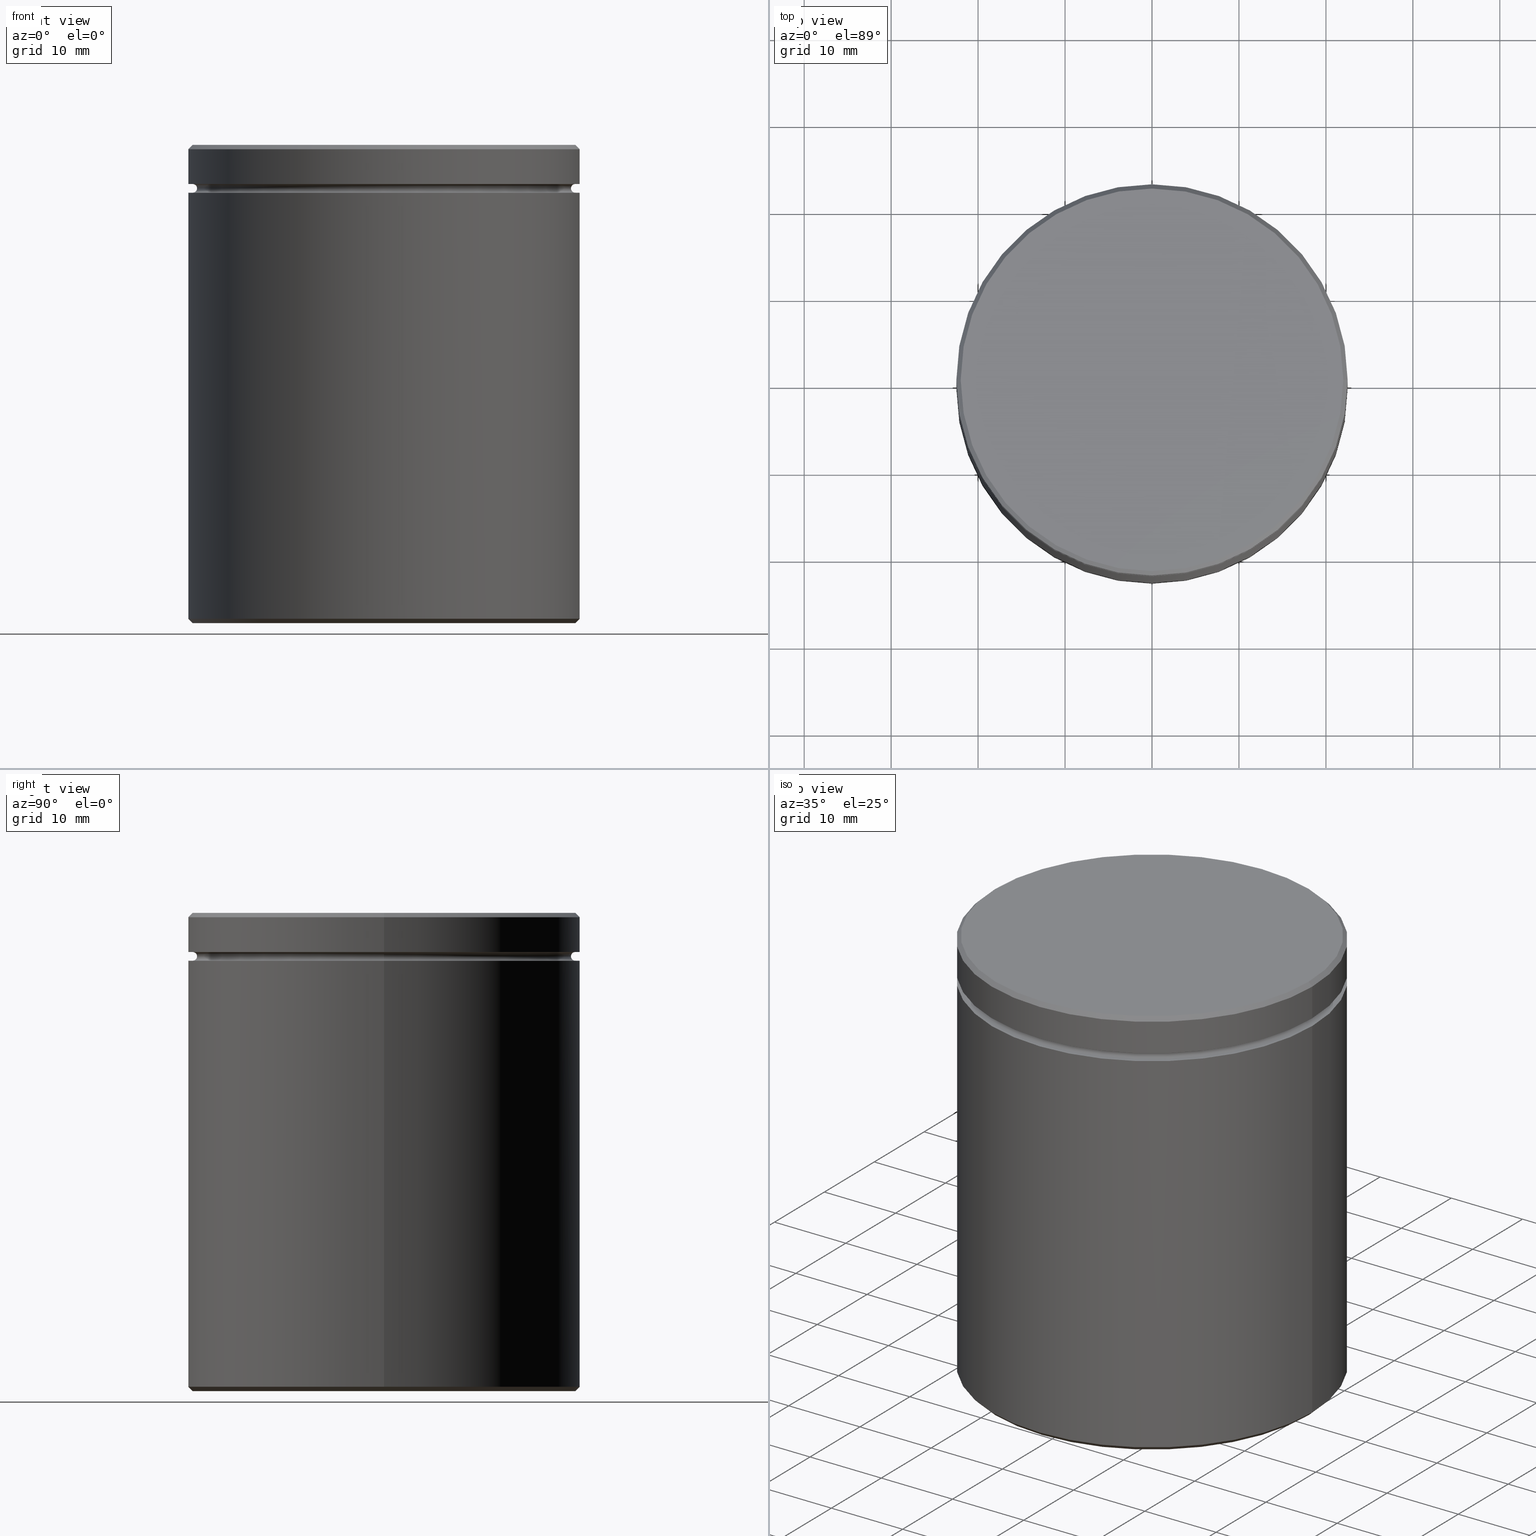
[diagram: canonical four-view strip — front | top / right | iso, engineering-drawing reading convention]
A machine part, canonical four-view strip (front | top / right | iso — engineering-drawing reading convention). The complete STEP part file that produces these views, byte-faithful:
ISO-10303-21;
HEADER;
FILE_DESCRIPTION (( 'STEP AP203' ),
    '1' );
FILE_NAME ('cf23.STEP',
    '2024-01-02T17:56:06',
    ( '' ),
    ( '' ),
    'SwSTEP 2.0',
    'SolidWorks 2019',
    '' );
FILE_SCHEMA (( 'CONFIG_CONTROL_DESIGN' ));
ENDSEC;

DATA;
#1 = ORIENTED_EDGE ( 'NONE', *, *, #313, .F. ) ;
#2 = CARTESIAN_POINT ( 'NONE',  ( 0.000000000000000000, 0.000000000000000000, 0.000000000000000000 ) ) ;
#3 = DIRECTION ( 'NONE',  ( 1.000000000000000000, 0.000000000000000000, 0.000000000000000000 ) ) ;
#4 = ORIENTED_EDGE ( 'NONE', *, *, #544, .T. ) ;
#5 = AXIS2_PLACEMENT_3D ( 'NONE', #542, #380, #504 ) ;
#6 = CC_DESIGN_APPROVAL ( #272, ( #123 ) ) ;
#7 = PRODUCT ( 'cf23', 'cf23', '', ( #242 ) ) ;
#8 = CARTESIAN_POINT ( 'NONE',  ( 0.000000000000000000, 0.000000000000000000, -4.999999999999999112 ) ) ;
#9 = DIRECTION ( 'NONE',  ( 1.000000000000000000, 0.000000000000000000, 0.000000000000000000 ) ) ;
#10 = DIRECTION ( 'NONE',  ( 0.000000000000000000, 0.000000000000000000, -1.000000000000000000 ) ) ;
#11 =( LENGTH_UNIT ( ) NAMED_UNIT ( * ) SI_UNIT ( .MILLI., .METRE. ) );
#12 = ORIENTED_EDGE ( 'NONE', *, *, #475, .T. ) ;
#13 = FACE_OUTER_BOUND ( 'NONE', #412, .T. ) ;
#14 = EDGE_LOOP ( 'NONE', ( #536, #84, #99, #256 ) ) ;
#15 = AXIS2_PLACEMENT_3D ( 'NONE', #65, #60, #139 ) ;
#16 = DIRECTION ( 'NONE',  ( -0.000000000000000000, -0.000000000000000000, 1.000000000000000000 ) ) ;
#17 = APPROVAL_PERSON_ORGANIZATION ( #50, #272, #100 ) ;
#18 = CARTESIAN_POINT ( 'NONE',  ( 0.000000000000000000, 0.000000000000000000, -4.999999999999999112 ) ) ;
#19 = DATE_TIME_ROLE ( 'creation_date' ) ;
#20 = EDGE_CURVE ( 'NONE', #298, #124, #87, .T. ) ;
#21 = DIRECTION ( 'NONE',  ( -0.000000000000000000, -0.000000000000000000, 1.000000000000000000 ) ) ;
#22 = ORIENTED_EDGE ( 'NONE', *, *, #152, .F. ) ;
#23 = PERSON_AND_ORGANIZATION_ROLE ( 'classification_officer' ) ;
#24 = APPROVAL ( #185, 'NEUR�EN�' ) ;
#25 = AXIS2_PLACEMENT_3D ( 'NONE', #403, #97, #279 ) ;
#26 = ORIENTED_EDGE ( 'NONE', *, *, #191, .T. ) ;
#27 = AXIS2_PLACEMENT_3D ( 'NONE', #485, #44, #442 ) ;
#28 = CARTESIAN_POINT ( 'NONE',  ( 0.000000000000000000, 21.50000000000000000, -5.500000000000000000 ) ) ;
#29 = CIRCLE ( 'NONE', #181, 0.5000000000000004441 ) ;
#30 = DIRECTION ( 'NONE',  ( 1.000000000000000000, 0.000000000000000000, 0.000000000000000000 ) ) ;
#31 = DIRECTION ( 'NONE',  ( -0.000000000000000000, -0.000000000000000000, -1.000000000000000000 ) ) ;
#32 = EDGE_CURVE ( 'NONE', #66, #43, #410, .T. ) ;
#33 = CARTESIAN_POINT ( 'NONE',  ( 0.000000000000000000, 0.000000000000000000, -4.500000000000000888 ) ) ;
#34 = AXIS2_PLACEMENT_3D ( 'NONE', #376, #31, #101 ) ;
#35 = AXIS2_PLACEMENT_3D ( 'NONE', #398, #517, #549 ) ;
#36 = VERTEX_POINT ( 'NONE', #512 ) ;
#37 = DIRECTION ( 'NONE',  ( -0.000000000000000000, -0.000000000000000000, 1.000000000000000000 ) ) ;
#38 = CARTESIAN_POINT ( 'NONE',  ( 0.000000000000000000, 0.000000000000000000, -4.999999999999999112 ) ) ;
#39 = EDGE_CURVE ( 'NONE', #58, #36, #543, .T. ) ;
#40 = ORIENTED_EDGE ( 'NONE', *, *, #480, .F. ) ;
#41 = VERTEX_POINT ( 'NONE', #553 ) ;
#42 = CIRCLE ( 'NONE', #71, 22.50000000000000000 ) ;
#43 = VERTEX_POINT ( 'NONE', #386 ) ;
#44 = DIRECTION ( 'NONE',  ( 0.000000000000000000, 0.000000000000000000, -1.000000000000000000 ) ) ;
#45 = ORIENTED_EDGE ( 'NONE', *, *, #335, .T. ) ;
#46 = CIRCLE ( 'NONE', #122, 0.5000000000000004441 ) ;
#47 = CARTESIAN_POINT ( 'NONE',  ( -15.50000000000000000, 0.000000000000000000, -55.00000000000000000 ) ) ;
#48 = COORDINATED_UNIVERSAL_TIME_OFFSET ( 1, 0, .AHEAD. ) ;
#49 = AXIS2_PLACEMENT_3D ( 'NONE', #523, #311, #482 ) ;
#50 = PERSON_AND_ORGANIZATION ( #539, #236 ) ;
#51 = CARTESIAN_POINT ( 'NONE',  ( 21.99999999999998579, 2.724839128102860202E-15, 0.000000000000000000 ) ) ;
#52 = EDGE_LOOP ( 'NONE', ( #45, #516 ) ) ;
#53 = DIRECTION ( 'NONE',  ( 1.000000000000000000, 0.000000000000000000, 0.000000000000000000 ) ) ;
#54 = DIRECTION ( 'NONE',  ( -1.000000000000000000, 1.224646799147349509E-16, 0.000000000000000000 ) ) ;
#55 = ADVANCED_FACE ( 'NONE', ( #397 ), #312, .F. ) ;
#56 = DIRECTION ( 'NONE',  ( 0.000000000000000000, 0.000000000000000000, -1.000000000000000000 ) ) ;
#57 = FACE_OUTER_BOUND ( 'NONE', #461, .T. ) ;
#58 = VERTEX_POINT ( 'NONE', #566 ) ;
#59 = CIRCLE ( 'NONE', #556, 22.00000000000000000 ) ;
#60 = DIRECTION ( 'NONE',  ( 0.000000000000000000, 0.000000000000000000, -1.000000000000000000 ) ) ;
#61 = ORIENTED_EDGE ( 'NONE', *, *, #301, .F. ) ;
#62 = APPLICATION_CONTEXT ( 'configuration controlled 3d designs of mechanical parts and assemblies' ) ;
#63 = CARTESIAN_POINT ( 'NONE',  ( 0.000000000000000000, 0.000000000000000000, 0.000000000000000000 ) ) ;
#64 = CARTESIAN_POINT ( 'NONE',  ( 0.000000000000000000, 0.000000000000000000, 0.000000000000000000 ) ) ;
#65 = CARTESIAN_POINT ( 'NONE',  ( 0.000000000000000000, 0.000000000000000000, -18.00000000000000355 ) ) ;
#66 = VERTEX_POINT ( 'NONE', #339 ) ;
#67 = APPROVAL_ROLE ( '' ) ;
#68 = ORIENTED_EDGE ( 'NONE', *, *, #241, .T. ) ;
#69 = ORIENTED_EDGE ( 'NONE', *, *, #199, .T. ) ;
#70 = DIRECTION ( 'NONE',  ( 1.000000000000000000, 0.000000000000000000, 0.000000000000000000 ) ) ;
#71 = AXIS2_PLACEMENT_3D ( 'NONE', #178, #338, #290 ) ;
#72 = DIRECTION ( 'NONE',  ( 0.000000000000000000, 0.000000000000000000, 1.000000000000000000 ) ) ;
#73 = CARTESIAN_POINT ( 'NONE',  ( 0.000000000000000000, 0.000000000000000000, -4.999999999999999112 ) ) ;
#74 = AXIS2_PLACEMENT_3D ( 'NONE', #154, #197, #561 ) ;
#75 = CARTESIAN_POINT ( 'NONE',  ( 0.000000000000000000, 0.000000000000000000, -18.00000000000000355 ) ) ;
#76 = EDGE_LOOP ( 'NONE', ( #208, #165 ) ) ;
#77 = DIRECTION ( 'NONE',  ( 1.000000000000000000, 0.000000000000000000, 0.000000000000000000 ) ) ;
#78 = EDGE_LOOP ( 'NONE', ( #266, #229, #432, #477 ) ) ;
#79 = EDGE_CURVE ( 'NONE', #559, #434, #192, .T. ) ;
#80 = DIRECTION ( 'NONE',  ( 0.000000000000000000, 0.000000000000000000, -1.000000000000000000 ) ) ;
#81 = LINE ( 'NONE', #292, #450 ) ;
#82 = CIRCLE ( 'NONE', #226, 22.50000000000000000 ) ;
#83 = AXIS2_PLACEMENT_3D ( 'NONE', #28, #506, #555 ) ;
#84 = ORIENTED_EDGE ( 'NONE', *, *, #454, .T. ) ;
#85 = CARTESIAN_POINT ( 'NONE',  ( 0.000000000000000000, 0.000000000000000000, -5.500000000000000000 ) ) ;
#86 = ADVANCED_FACE ( 'NONE', ( #147 ), #224, .T. ) ;
#87 = CIRCLE ( 'NONE', #499, 22.00000000000000000 ) ;
#88 = ORIENTED_EDGE ( 'NONE', *, *, #537, .T. ) ;
#89 = CIRCLE ( 'NONE', #142, 22.50000000000000000 ) ;
#90 = LOCAL_TIME ( 18, 56, 6.000000000000000000, #278 ) ;
#91 = PERSON_AND_ORGANIZATION ( #539, #236 ) ;
#92 = EDGE_LOOP ( 'NONE', ( #109, #404 ) ) ;
#93 = AXIS2_PLACEMENT_3D ( 'NONE', #75, #344, #194 ) ;
#94 = ORIENTED_EDGE ( 'NONE', *, *, #79, .F. ) ;
#95 = DIRECTION ( 'NONE',  ( -0.000000000000000000, -0.000000000000000000, 1.000000000000000000 ) ) ;
#96 = DIRECTION ( 'NONE',  ( -1.224646799147353207E-16, 1.000000000000000000, 0.000000000000000000 ) ) ;
#97 = DIRECTION ( 'NONE',  ( 0.000000000000000000, 0.000000000000000000, -1.000000000000000000 ) ) ;
#98 = DIRECTION ( 'NONE',  ( -0.000000000000000000, -0.000000000000000000, 1.000000000000000000 ) ) ;
#99 = ORIENTED_EDGE ( 'NONE', *, *, #568, .T. ) ;
#100 = APPROVAL_ROLE ( '' ) ;
#101 = DIRECTION ( 'NONE',  ( -1.000000000000000000, 0.000000000000000000, 0.000000000000000000 ) ) ;
#102 = CARTESIAN_POINT ( 'NONE',  ( -22.00000000000000000, 0.000000000000000000, -5.000000000000000888 ) ) ;
#103 = LINE ( 'NONE', #411, #205 ) ;
#104 = ORIENTED_EDGE ( 'NONE', *, *, #465, .F. ) ;
#105 = PERSON_AND_ORGANIZATION_ROLE ( 'design_supplier' ) ;
#106 = CIRCLE ( 'NONE', #35, 22.50000000000000000 ) ;
#107 = LINE ( 'NONE', #456, #141 ) ;
#108 = DIRECTION ( 'NONE',  ( -0.000000000000000000, -0.000000000000000000, 1.000000000000000000 ) ) ;
#109 = ORIENTED_EDGE ( 'NONE', *, *, #241, .F. ) ;
#110 = CARTESIAN_POINT ( 'NONE',  ( 0.000000000000000000, 0.000000000000000000, 0.000000000000000000 ) ) ;
#111 = ADVANCED_FACE ( 'NONE', ( #168 ), #218, .T. ) ;
#112 = CARTESIAN_POINT ( 'NONE',  ( 0.000000000000000000, 0.000000000000000000, -55.00000000000000000 ) ) ;
#113 = CARTESIAN_POINT ( 'NONE',  ( -22.50000000000000000, 2.755455298081544778E-15, -54.49999999999999289 ) ) ;
#114 = DIRECTION ( 'NONE',  ( -1.000000000000000000, 0.000000000000000000, 0.000000000000000000 ) ) ;
#115 = CC_DESIGN_DATE_AND_TIME_ASSIGNMENT ( #189, #145, ( #471 ) ) ;
#116 = AXIS2_PLACEMENT_3D ( 'NONE', #535, #460, #462 ) ;
#117 = CARTESIAN_POINT ( 'NONE',  ( 21.99999999999999289, 0.000000000000000000, -55.00000000000000000 ) ) ;
#118 = CIRCLE ( 'NONE', #379, 0.5000000000000004441 ) ;
#119 = ORIENTED_EDGE ( 'NONE', *, *, #324, .T. ) ;
#120 = FACE_OUTER_BOUND ( 'NONE', #140, .T. ) ;
#121 = DIRECTION ( 'NONE',  ( 0.000000000000000000, 0.000000000000000000, -1.000000000000000000 ) ) ;
#122 = AXIS2_PLACEMENT_3D ( 'NONE', #401, #175, #54 ) ;
#123 = PRODUCT_DEFINITION ( 'NEZN�M�', '', #558, #219 ) ;
#124 = VERTEX_POINT ( 'NONE', #271 ) ;
#125 = AXIS2_PLACEMENT_3D ( 'NONE', #389, #80, #560 ) ;
#126 = DIRECTION ( 'NONE',  ( 0.000000000000000000, 0.000000000000000000, -1.000000000000000000 ) ) ;
#127 = CARTESIAN_POINT ( 'NONE',  ( 22.50000000000000000, 0.000000000000000000, -0.5000000000000212053 ) ) ;
#128 = EDGE_CURVE ( 'NONE', #522, #298, #46, .T. ) ;
#129 = CARTESIAN_POINT ( 'NONE',  ( 22.50000000000000000, 0.000000000000000000, -5.500000000000000000 ) ) ;
#130 = APPROVAL_DATE_TIME ( #220, #563 ) ;
#131 = CC_DESIGN_SECURITY_CLASSIFICATION ( #471, ( #558 ) ) ;
#132 = CALENDAR_DATE ( 2024, 2, 1 ) ;
#133 = CARTESIAN_POINT ( 'NONE',  ( -22.50000000000000000, 2.755455298081544778E-15, -54.49999999999999289 ) ) ;
#134 = ADVANCED_FACE ( 'NONE', ( #327 ), #447, .F. ) ;
#135 = EDGE_LOOP ( 'NONE', ( #433, #370 ) ) ;
#136 = EDGE_CURVE ( 'NONE', #66, #246, #494, .T. ) ;
#137 = CARTESIAN_POINT ( 'NONE',  ( 0.000000000000000000, 22.50000000000000000, -4.500000000000000888 ) ) ;
#138 = APPROVAL_DATE_TIME ( #237, #272 ) ;
#139 = DIRECTION ( 'NONE',  ( -1.000000000000000000, 0.000000000000000000, 0.000000000000000000 ) ) ;
#140 = EDGE_LOOP ( 'NONE', ( #258, #420 ) ) ;
#141 = VECTOR ( 'NONE', #552, 1000.000000000000114 ) ;
#142 = AXIS2_PLACEMENT_3D ( 'NONE', #265, #216, #569 ) ;
#143 = ADVANCED_FACE ( 'NONE', ( #13 ), #491, .F. ) ;
#144 = CARTESIAN_POINT ( 'NONE',  ( -21.99999999999998579, 0.000000000000000000, 0.000000000000000000 ) ) ;
#145 = DATE_TIME_ROLE ( 'classification_date' ) ;
#146 = DIRECTION ( 'NONE',  ( 1.000000000000000000, 0.000000000000000000, 0.000000000000000000 ) ) ;
#147 = FACE_OUTER_BOUND ( 'NONE', #567, .T. ) ;
#148 = CALENDAR_DATE ( 2024, 2, 1 ) ;
#149 = DIRECTION ( 'NONE',  ( -0.000000000000000000, -0.000000000000000000, 1.000000000000000000 ) ) ;
#150 = DIRECTION ( 'NONE',  ( -1.000000000000000000, 0.000000000000000000, 0.000000000000000000 ) ) ;
#151 = DIRECTION ( 'NONE',  ( 0.000000000000000000, 0.000000000000000000, -1.000000000000000000 ) ) ;
#152 = EDGE_CURVE ( 'NONE', #124, #298, #316, .T. ) ;
#153 = FACE_OUTER_BOUND ( 'NONE', #423, .T. ) ;
#154 = CARTESIAN_POINT ( 'NONE',  ( 0.000000000000000000, 0.000000000000000000, -0.5000000000000212053 ) ) ;
#155 = DIRECTION ( 'NONE',  ( -0.000000000000000000, -0.000000000000000000, -1.000000000000000000 ) ) ;
#156 = LOCAL_TIME ( 18, 56, 6.000000000000000000, #249 ) ;
#157 = DIRECTION ( 'NONE',  ( -0.000000000000000000, -0.000000000000000000, 1.000000000000000000 ) ) ;
#158 = ORIENTED_EDGE ( 'NONE', *, *, #544, .F. ) ;
#159 = CARTESIAN_POINT ( 'NONE',  ( 22.00000000000000000, 0.000000000000000000, -4.999999999999999112 ) ) ;
#160 = LINE ( 'NONE', #260, #287 ) ;
#161 = DIRECTION ( 'NONE',  ( -0.000000000000000000, -0.000000000000000000, 1.000000000000000000 ) ) ;
#162 = VECTOR ( 'NONE', #231, 1000.000000000000000 ) ;
#163 = DIRECTION ( 'NONE',  ( -0.000000000000000000, -0.000000000000000000, 1.000000000000000000 ) ) ;
#164 = CARTESIAN_POINT ( 'NONE',  ( -22.50000000000000000, 2.755455298081544778E-15, -5.500000000000000000 ) ) ;
#165 = ORIENTED_EDGE ( 'NONE', *, *, #253, .T. ) ;
#166 = EDGE_CURVE ( 'NONE', #500, #221, #235, .T. ) ;
#167 = VERTEX_POINT ( 'NONE', #333 ) ;
#168 = FACE_OUTER_BOUND ( 'NONE', #135, .T. ) ;
#169 = AXIS2_PLACEMENT_3D ( 'NONE', #195, #186, #373 ) ;
#170 = TOROIDAL_SURFACE ( 'NONE', #565, 22.00000000000000000, 0.5000000000000000000 ) ;
#171 = ORIENTED_EDGE ( 'NONE', *, *, #445, .T. ) ;
#172 = DIRECTION ( 'NONE',  ( -0.000000000000000000, -0.000000000000000000, 1.000000000000000000 ) ) ;
#173 = EDGE_CURVE ( 'NONE', #500, #434, #238, .T. ) ;
#174 = FACE_BOUND ( 'NONE', #184, .T. ) ;
#175 = DIRECTION ( 'NONE',  ( 1.224646799147353207E-16, 1.000000000000000000, 0.000000000000000000 ) ) ;
#176 = EDGE_CURVE ( 'NONE', #179, #478, #285, .T. ) ;
#177 = PERSON_AND_ORGANIZATION ( #539, #236 ) ;
#178 = CARTESIAN_POINT ( 'NONE',  ( 0.000000000000000000, 0.000000000000000000, -5.500000000000000000 ) ) ;
#179 = VERTEX_POINT ( 'NONE', #467 ) ;
#180 = CIRCLE ( 'NONE', #502, 22.50000000000000000 ) ;
#181 = AXIS2_PLACEMENT_3D ( 'NONE', #102, #284, #529 ) ;
#182 = ADVANCED_FACE ( 'NONE', ( #251 ), #428, .F. ) ;
#183 = DIRECTION ( 'NONE',  ( 1.000000000000000000, 0.000000000000000000, 0.000000000000000000 ) ) ;
#184 = EDGE_LOOP ( 'NONE', ( #492, #26 ) ) ;
#185 = APPROVAL_STATUS ( 'not_yet_approved' ) ;
#186 = DIRECTION ( 'NONE',  ( -0.000000000000000000, -0.000000000000000000, 1.000000000000000000 ) ) ;
#187 = FACE_BOUND ( 'NONE', #444, .T. ) ;
#188 = ORIENTED_EDGE ( 'NONE', *, *, #480, .T. ) ;
#189 = DATE_AND_TIME ( #148, #156 ) ;
#190 = DIRECTION ( 'NONE',  ( 0.000000000000000000, 0.000000000000000000, -1.000000000000000000 ) ) ;
#191 = EDGE_CURVE ( 'NONE', #36, #58, #59, .T. ) ;
#192 = LINE ( 'NONE', #378, #375 ) ;
#193 = VECTOR ( 'NONE', #384, 1000.000000000000000 ) ;
#194 = DIRECTION ( 'NONE',  ( -1.000000000000000000, 0.000000000000000000, 0.000000000000000000 ) ) ;
#195 = CARTESIAN_POINT ( 'NONE',  ( 0.000000000000000000, 0.000000000000000000, -4.500000000000000888 ) ) ;
#196 = APPLICATION_PROTOCOL_DEFINITION ( 'international standard', 'config_control_design', 1994, #363 ) ;
#197 = DIRECTION ( 'NONE',  ( 0.000000000000000000, 0.000000000000000000, -1.000000000000000000 ) ) ;
#198 = ORIENTED_EDGE ( 'NONE', *, *, #301, .T. ) ;
#199 = EDGE_CURVE ( 'NONE', #478, #41, #107, .T. ) ;
#200 = CARTESIAN_POINT ( 'NONE',  ( 22.50000000000000000, 0.000000000000000000, 0.000000000000000000 ) ) ;
#201 = DATE_AND_TIME ( #132, #259 ) ;
#202 = CARTESIAN_POINT ( 'NONE',  ( 0.000000000000000000, 0.000000000000000000, 0.000000000000000000 ) ) ;
#203 = ORIENTED_EDGE ( 'NONE', *, *, #173, .T. ) ;
#204 = FACE_OUTER_BOUND ( 'NONE', #277, .T. ) ;
#205 = VECTOR ( 'NONE', #422, 1000.000000000000000 ) ;
#206 = APPROVAL_PERSON_ORGANIZATION ( #247, #563, #67 ) ;
#207 = AXIS2_PLACEMENT_3D ( 'NONE', #64, #72, #429 ) ;
#208 = ORIENTED_EDGE ( 'NONE', *, *, #350, .T. ) ;
#209 = CYLINDRICAL_SURFACE ( 'NONE', #49, 22.50000000000000000 ) ;
#210 = APPLICATION_PROTOCOL_DEFINITION ( 'international standard', 'config_control_design', 1994, #62 ) ;
#211 = DIRECTION ( 'NONE',  ( -0.000000000000000000, -0.000000000000000000, 1.000000000000000000 ) ) ;
#212 = ADVANCED_FACE ( 'NONE', ( #153 ), #328, .T. ) ;
#213 = EDGE_LOOP ( 'NONE', ( #40, #394, #22, #345 ) ) ;
#214 = DIRECTION ( 'NONE',  ( -0.000000000000000000, -0.000000000000000000, 1.000000000000000000 ) ) ;
#215 = AXIS2_PLACEMENT_3D ( 'NONE', #112, #190, #294 ) ;
#216 = DIRECTION ( 'NONE',  ( -0.000000000000000000, -0.000000000000000000, 1.000000000000000000 ) ) ;
#217 = LOCAL_TIME ( 18, 56, 6.000000000000000000, #340 ) ;
#218 = PLANE ( 'NONE',  #476 ) ;
#219 = DESIGN_CONTEXT ( 'detailed design', #62, 'design' ) ;
#220 = DATE_AND_TIME ( #225, #217 ) ;
#221 = VERTEX_POINT ( 'NONE', #547 ) ;
#222 = EDGE_CURVE ( 'NONE', #434, #293, #180, .T. ) ;
#223 = PERSON_AND_ORGANIZATION_ROLE ( 'design_owner' ) ;
#224 = CONICAL_SURFACE ( 'NONE', #357, 22.50000000000000000, 0.7853981633974482790 ) ;
#225 = CALENDAR_DATE ( 2024, 2, 1 ) ;
#226 = AXIS2_PLACEMENT_3D ( 'NONE', #263, #37, #354 ) ;
#227 = ORIENTED_EDGE ( 'NONE', *, *, #331, .T. ) ;
#228 = APPROVAL_STATUS ( 'not_yet_approved' ) ;
#229 = ORIENTED_EDGE ( 'NONE', *, *, #355, .T. ) ;
#230 = FACE_OUTER_BOUND ( 'NONE', #481, .T. ) ;
#231 = DIRECTION ( 'NONE',  ( -0.000000000000000000, -0.000000000000000000, -1.000000000000000000 ) ) ;
#232 = ORIENTED_EDGE ( 'NONE', *, *, #355, .F. ) ;
#233 = DIRECTION ( 'NONE',  ( 0.000000000000000000, 0.000000000000000000, -1.000000000000000000 ) ) ;
#234 = CARTESIAN_POINT ( 'NONE',  ( -22.50000000000000000, 2.755455298081544778E-15, 0.000000000000000000 ) ) ;
#235 = CIRCLE ( 'NONE', #169, 22.50000000000000000 ) ;
#236 = ORGANIZATION ( 'NEUR�EN�', 'NEUR�EN�', '' ) ;
#237 = DATE_AND_TIME ( #322, #329 ) ;
#238 = LINE ( 'NONE', #291, #276 ) ;
#239 = ORIENTED_EDGE ( 'NONE', *, *, #39, .F. ) ;
#240 = SECURITY_CLASSIFICATION_LEVEL ( 'unclassified' ) ;
#241 = EDGE_CURVE ( 'NONE', #221, #500, #308, .T. ) ;
#242 = MECHANICAL_CONTEXT ( 'NONE', #363, 'mechanical' ) ;
#243 = DIRECTION ( 'NONE',  ( -0.000000000000000000, -0.000000000000000000, 1.000000000000000000 ) ) ;
#244 = FACE_OUTER_BOUND ( 'NONE', #323, .T. ) ;
#245 = PRODUCT_DEFINITION_SHAPE ( 'NONE', 'NONE',  #123 ) ;
#246 = VERTEX_POINT ( 'NONE', #47 ) ;
#247 = PERSON_AND_ORGANIZATION ( #539, #236 ) ;
#248 = AXIS2_PLACEMENT_3D ( 'NONE', #110, #334, #426 ) ;
#249 = COORDINATED_UNIVERSAL_TIME_OFFSET ( 1, 0, .AHEAD. ) ;
#250 = AXIS2_PLACEMENT_3D ( 'NONE', #73, #348, #391 ) ;
#251 = FACE_OUTER_BOUND ( 'NONE', #507, .T. ) ;
#252 = CARTESIAN_POINT ( 'NONE',  ( 0.000000000000000000, 0.000000000000000000, 0.000000000000000000 ) ) ;
#253 = EDGE_CURVE ( 'NONE', #557, #559, #299, .T. ) ;
#254 = FACE_BOUND ( 'NONE', #342, .T. ) ;
#255 = DIRECTION ( 'NONE',  ( -1.000000000000000000, 0.000000000000000000, 0.000000000000000000 ) ) ;
#256 = ORIENTED_EDGE ( 'NONE', *, *, #191, .F. ) ;
#257 = DIRECTION ( 'NONE',  ( -1.000000000000000000, 0.000000000000000000, 0.000000000000000000 ) ) ;
#258 = ORIENTED_EDGE ( 'NONE', *, *, #407, .T. ) ;
#259 = LOCAL_TIME ( 18, 56, 6.000000000000000000, #48 ) ;
#260 = CARTESIAN_POINT ( 'NONE',  ( 22.50000000000000000, 0.000000000000000000, 0.000000000000000000 ) ) ;
#261 = ORIENTED_EDGE ( 'NONE', *, *, #324, .F. ) ;
#262 = ORIENTED_EDGE ( 'NONE', *, *, #335, .F. ) ;
#263 = CARTESIAN_POINT ( 'NONE',  ( 0.000000000000000000, 0.000000000000000000, -54.49999999999999289 ) ) ;
#264 = CC_DESIGN_PERSON_AND_ORGANIZATION_ASSIGNMENT ( #421, #23, ( #471 ) ) ;
#265 = CARTESIAN_POINT ( 'NONE',  ( 0.000000000000000000, 0.000000000000000000, -54.49999999999999289 ) ) ;
#266 = ORIENTED_EDGE ( 'NONE', *, *, #425, .F. ) ;
#267 = ORIENTED_EDGE ( 'NONE', *, *, #128, .F. ) ;
#268 = CIRCLE ( 'NONE', #15, 15.50000000000000000 ) ;
#269 = CIRCLE ( 'NONE', #513, 21.50000000000000000 ) ;
#270 = VERTEX_POINT ( 'NONE', #129 ) ;
#271 = CARTESIAN_POINT ( 'NONE',  ( 22.00000000000000000, 0.000000000000000000, -5.500000000000000000 ) ) ;
#272 = APPROVAL ( #228, 'NEUR�EN�' ) ;
#273 = ADVANCED_BREP_SHAPE_REPRESENTATION ( 'cf23', ( #289, #207 ), #396 ) ;
#274 = DIRECTION ( 'NONE',  ( -1.000000000000000000, 0.000000000000000000, -0.000000000000000000 ) ) ;
#275 = CARTESIAN_POINT ( 'NONE',  ( 22.00000000000000000, 2.694222958124176809E-15, -5.000000000000000888 ) ) ;
#276 = VECTOR ( 'NONE', #149, 1000.000000000000000 ) ;
#277 = EDGE_LOOP ( 'NONE', ( #306, #309, #88, #361 ) ) ;
#278 = COORDINATED_UNIVERSAL_TIME_OFFSET ( 1, 0, .AHEAD. ) ;
#279 = DIRECTION ( 'NONE',  ( -1.000000000000000000, 0.000000000000000000, 0.000000000000000000 ) ) ;
#280 = ADVANCED_FACE ( 'NONE', ( #174, #443 ), #314, .T. ) ;
#281 = ORIENTED_EDGE ( 'NONE', *, *, #253, .F. ) ;
#282 = DIRECTION ( 'NONE',  ( 1.000000000000000000, 0.000000000000000000, 0.000000000000000000 ) ) ;
#283 = VERTEX_POINT ( 'NONE', #325 ) ;
#284 = DIRECTION ( 'NONE',  ( -0.000000000000000000, -1.000000000000000000, -0.000000000000000000 ) ) ;
#285 = CIRCLE ( 'NONE', #215, 21.99999999999999289 ) ;
#286 = ORIENTED_EDGE ( 'NONE', *, *, #568, .F. ) ;
#287 = VECTOR ( 'NONE', #163, 1000.000000000000000 ) ;
#288 = EDGE_CURVE ( 'NONE', #167, #246, #402, .T. ) ;
#289 = MANIFOLD_SOLID_BREP ( 'Zaoblit1', #524 ) ;
#290 = DIRECTION ( 'NONE',  ( 1.000000000000000000, 0.000000000000000000, 0.000000000000000000 ) ) ;
#291 = CARTESIAN_POINT ( 'NONE',  ( -22.50000000000000000, 2.755455298081544778E-15, 0.000000000000000000 ) ) ;
#292 = CARTESIAN_POINT ( 'NONE',  ( 21.99999999999998579, 2.694222958124175232E-15, 0.000000000000000000 ) ) ;
#293 = VERTEX_POINT ( 'NONE', #127 ) ;
#294 = DIRECTION ( 'NONE',  ( -1.000000000000000000, 0.000000000000000000, 0.000000000000000000 ) ) ;
#295 = FACE_OUTER_BOUND ( 'NONE', #76, .T. ) ;
#296 = CYLINDRICAL_SURFACE ( 'NONE', #346, 22.50000000000000000 ) ;
#297 = ORIENTED_EDGE ( 'NONE', *, *, #313, .T. ) ;
#298 = VERTEX_POINT ( 'NONE', #479 ) ;
#299 = CIRCLE ( 'NONE', #470, 21.99999999999998579 ) ;
#300 = CIRCLE ( 'NONE', #250, 21.50000000000000000 ) ;
#301 = EDGE_CURVE ( 'NONE', #41, #498, #82, .T. ) ;
#302 = PLANE ( 'NONE',  #83 ) ;
#303 = EDGE_LOOP ( 'NONE', ( #68, #203, #330, #518 ) ) ;
#304 = AXIS2_PLACEMENT_3D ( 'NONE', #33, #214, #114 ) ;
#305 = LINE ( 'NONE', #113, #495 ) ;
#306 = ORIENTED_EDGE ( 'NONE', *, *, #173, .F. ) ;
#307 = ADVANCED_FACE ( 'NONE', ( #204 ), #209, .T. ) ;
#308 = CIRCLE ( 'NONE', #387, 22.50000000000000000 ) ;
#309 = ORIENTED_EDGE ( 'NONE', *, *, #166, .T. ) ;
#310 = DIRECTION ( 'NONE',  ( 1.000000000000000000, 0.000000000000000000, 0.000000000000000000 ) ) ;
#311 = DIRECTION ( 'NONE',  ( -0.000000000000000000, -0.000000000000000000, 1.000000000000000000 ) ) ;
#312 = CYLINDRICAL_SURFACE ( 'NONE', #525, 15.50000000000000000 ) ;
#313 = EDGE_CURVE ( 'NONE', #41, #270, #474, .T. ) ;
#314 = PLANE ( 'NONE',  #336 ) ;
#315 = CARTESIAN_POINT ( 'NONE',  ( 0.000000000000000000, 0.000000000000000000, -54.49999999999999289 ) ) ;
#316 = CIRCLE ( 'NONE', #533, 22.00000000000000000 ) ;
#317 = CC_DESIGN_APPROVAL ( #563, ( #471 ) ) ;
#318 = CC_DESIGN_PERSON_AND_ORGANIZATION_ASSIGNMENT ( #91, #223, ( #7 ) ) ;
#319 = DIRECTION ( 'NONE',  ( 1.000000000000000000, 0.000000000000000000, 0.000000000000000000 ) ) ;
#320 = PERSON_AND_ORGANIZATION ( #539, #236 ) ;
#321 = CARTESIAN_POINT ( 'NONE',  ( -21.50000000000000000, 2.663606788145493022E-15, -4.999999999999999112 ) ) ;
#322 = CALENDAR_DATE ( 2024, 2, 1 ) ;
#323 = EDGE_LOOP ( 'NONE', ( #198, #4, #451, #1 ) ) ;
#324 = EDGE_CURVE ( 'NONE', #246, #167, #427, .T. ) ;
#325 = CARTESIAN_POINT ( 'NONE',  ( 21.50000000000000000, 0.000000000000000000, -4.999999999999999112 ) ) ;
#326 = PERSON_AND_ORGANIZATION_ROLE ( 'creator' ) ;
#327 = FACE_OUTER_BOUND ( 'NONE', #14, .T. ) ;
#328 = CONICAL_SURFACE ( 'NONE', #486, 21.99999999999998579, 0.7853981633974415066 ) ;
#329 = LOCAL_TIME ( 18, 56, 6.000000000000000000, #446 ) ;
#330 = ORIENTED_EDGE ( 'NONE', *, *, #222, .T. ) ;
#331 = EDGE_CURVE ( 'NONE', #283, #124, #493, .T. ) ;
#332 = ORIENTED_EDGE ( 'NONE', *, *, #32, .F. ) ;
#333 = CARTESIAN_POINT ( 'NONE',  ( 15.50000000000000000, 1.898202538678397557E-15, -55.00000000000000000 ) ) ;
#334 = DIRECTION ( 'NONE',  ( -0.000000000000000000, -0.000000000000000000, 1.000000000000000000 ) ) ;
#335 = EDGE_CURVE ( 'NONE', #478, #179, #388, .T. ) ;
#336 = AXIS2_PLACEMENT_3D ( 'NONE', #137, #487, #360 ) ;
#337 = ORIENTED_EDGE ( 'NONE', *, *, #448, .F. ) ;
#338 = DIRECTION ( 'NONE',  ( -0.000000000000000000, -0.000000000000000000, 1.000000000000000000 ) ) ;
#339 = CARTESIAN_POINT ( 'NONE',  ( -15.50000000000000000, 0.000000000000000000, -18.00000000000000355 ) ) ;
#340 = COORDINATED_UNIVERSAL_TIME_OFFSET ( 1, 0, .AHEAD. ) ;
#341 =( NAMED_UNIT ( * ) SI_UNIT ( $, .STERADIAN. ) SOLID_ANGLE_UNIT ( ) );
#342 = EDGE_LOOP ( 'NONE', ( #383, #353 ) ) ;
#343 = CARTESIAN_POINT ( 'NONE',  ( 0.000000000000000000, 0.000000000000000000, -4.500000000000000888 ) ) ;
#344 = DIRECTION ( 'NONE',  ( 0.000000000000000000, 0.000000000000000000, -1.000000000000000000 ) ) ;
#345 = ORIENTED_EDGE ( 'NONE', *, *, #331, .F. ) ;
#346 = AXIS2_PLACEMENT_3D ( 'NONE', #202, #157, #77 ) ;
#347 = CC_DESIGN_PERSON_AND_ORGANIZATION_ASSIGNMENT ( #541, #105, ( #558 ) ) ;
#348 = DIRECTION ( 'NONE',  ( -0.000000000000000000, -0.000000000000000000, 1.000000000000000000 ) ) ;
#349 = ORIENTED_EDGE ( 'NONE', *, *, #176, .F. ) ;
#350 = EDGE_CURVE ( 'NONE', #559, #557, #352, .T. ) ;
#351 = ORIENTED_EDGE ( 'NONE', *, *, #199, .F. ) ;
#352 = CIRCLE ( 'NONE', #458, 21.99999999999998579 ) ;
#353 = ORIENTED_EDGE ( 'NONE', *, *, #20, .T. ) ;
#354 = DIRECTION ( 'NONE',  ( -1.000000000000000000, 0.000000000000000000, 0.000000000000000000 ) ) ;
#355 = EDGE_CURVE ( 'NONE', #43, #167, #103, .T. ) ;
#356 = DIRECTION ( 'NONE',  ( 0.000000000000000000, 0.000000000000000000, -1.000000000000000000 ) ) ;
#357 = AXIS2_PLACEMENT_3D ( 'NONE', #315, #362, #282 ) ;
#358 = DIRECTION ( 'NONE',  ( -0.000000000000000000, -0.000000000000000000, 1.000000000000000000 ) ) ;
#359 = AXIS2_PLACEMENT_3D ( 'NONE', #431, #121, #150 ) ;
#360 = DIRECTION ( 'NONE',  ( -1.000000000000000000, 0.000000000000000000, -0.000000000000000000 ) ) ;
#361 = ORIENTED_EDGE ( 'NONE', *, *, #465, .T. ) ;
#362 = DIRECTION ( 'NONE',  ( -0.000000000000000000, -0.000000000000000000, 1.000000000000000000 ) ) ;
#363 = APPLICATION_CONTEXT ( 'configuration controlled 3d designs of mechanical parts and assemblies' ) ;
#364 = CYLINDRICAL_SURFACE ( 'NONE', #248, 22.50000000000000000 ) ;
#365 = ORIENTED_EDGE ( 'NONE', *, *, #445, .F. ) ;
#366 = CC_DESIGN_PERSON_AND_ORGANIZATION_ASSIGNMENT ( #177, #326, ( #123 ) ) ;
#367 = AXIS2_PLACEMENT_3D ( 'NONE', #18, #108, #146 ) ;
#368 = PLANE ( 'NONE',  #116 ) ;
#369 = VECTOR ( 'NONE', #243, 1000.000000000000000 ) ;
#370 = ORIENTED_EDGE ( 'NONE', *, *, #425, .T. ) ;
#371 = DIRECTION ( 'NONE',  ( -1.000000000000000000, -1.224646799147349509E-16, 0.000000000000000000 ) ) ;
#372 = ORIENTED_EDGE ( 'NONE', *, *, #20, .F. ) ;
#373 = DIRECTION ( 'NONE',  ( 1.000000000000000000, 0.000000000000000000, 0.000000000000000000 ) ) ;
#374 = CARTESIAN_POINT ( 'NONE',  ( 0.000000000000000000, 0.000000000000000000, 0.000000000000000000 ) ) ;
#375 = VECTOR ( 'NONE', #548, 1000.000000000000000 ) ;
#376 = CARTESIAN_POINT ( 'NONE',  ( 0.000000000000000000, 0.000000000000000000, -18.00000000000000355 ) ) ;
#377 = FACE_OUTER_BOUND ( 'NONE', #528, .T. ) ;
#378 = CARTESIAN_POINT ( 'NONE',  ( -21.99999999999998579, 0.000000000000000000, 0.000000000000000000 ) ) ;
#379 = AXIS2_PLACEMENT_3D ( 'NONE', #275, #96, #371 ) ;
#380 = DIRECTION ( 'NONE',  ( 0.000000000000000000, 0.000000000000000000, -1.000000000000000000 ) ) ;
#381 = ORIENTED_EDGE ( 'NONE', *, *, #454, .F. ) ;
#382 = DIRECTION ( 'NONE',  ( -1.000000000000000000, 0.000000000000000000, 0.000000000000000000 ) ) ;
#383 = ORIENTED_EDGE ( 'NONE', *, *, #152, .T. ) ;
#384 = DIRECTION ( 'NONE',  ( -0.000000000000000000, -0.000000000000000000, 1.000000000000000000 ) ) ;
#385 = APPROVAL_DATE_TIME ( #201, #24 ) ;
#386 = CARTESIAN_POINT ( 'NONE',  ( 15.50000000000000000, 1.898202538678397557E-15, -18.00000000000000355 ) ) ;
#387 = AXIS2_PLACEMENT_3D ( 'NONE', #414, #16, #53 ) ;
#388 = CIRCLE ( 'NONE', #27, 21.99999999999999289 ) ;
#389 = CARTESIAN_POINT ( 'NONE',  ( 0.000000000000000000, 0.000000000000000000, -55.00000000000000000 ) ) ;
#390 =( NAMED_UNIT ( * ) PLANE_ANGLE_UNIT ( ) SI_UNIT ( $, .RADIAN. ) );
#391 = DIRECTION ( 'NONE',  ( 1.000000000000000000, 0.000000000000000000, 0.000000000000000000 ) ) ;
#392 = ADVANCED_FACE ( 'NONE', ( #244 ), #364, .T. ) ;
#393 = CC_DESIGN_DATE_AND_TIME_ASSIGNMENT ( #418, #19, ( #123 ) ) ;
#394 = ORIENTED_EDGE ( 'NONE', *, *, #128, .T. ) ;
#395 = CARTESIAN_POINT ( 'NONE',  ( 0.000000000000000000, 0.000000000000000000, -55.00000000000000000 ) ) ;
#396 =( GEOMETRIC_REPRESENTATION_CONTEXT ( 3 ) GLOBAL_UNCERTAINTY_ASSIGNED_CONTEXT ( ( #488 ) ) GLOBAL_UNIT_ASSIGNED_CONTEXT ( ( #11, #390, #341 ) ) REPRESENTATION_CONTEXT ( 'NONE', 'WORKASPACE' ) );
#397 = FACE_OUTER_BOUND ( 'NONE', #78, .T. ) ;
#398 = CARTESIAN_POINT ( 'NONE',  ( 0.000000000000000000, 0.000000000000000000, -5.500000000000000000 ) ) ;
#399 = ORIENTED_EDGE ( 'NONE', *, *, #288, .F. ) ;
#400 = ADVANCED_FACE ( 'NONE', ( #377 ), #564, .F. ) ;
#401 = CARTESIAN_POINT ( 'NONE',  ( -22.00000000000000000, 2.694222958124176809E-15, -4.999999999999999112 ) ) ;
#402 = CIRCLE ( 'NONE', #519, 15.50000000000000000 ) ;
#403 = CARTESIAN_POINT ( 'NONE',  ( 0.000000000000000000, 0.000000000000000000, -5.000000000000000888 ) ) ;
#404 = ORIENTED_EDGE ( 'NONE', *, *, #166, .F. ) ;
#405 = SHAPE_DEFINITION_REPRESENTATION ( #245, #273 ) ;
#406 = CARTESIAN_POINT ( 'NONE',  ( 0.000000000000000000, 0.000000000000000000, 0.000000000000000000 ) ) ;
#407 = EDGE_CURVE ( 'NONE', #270, #540, #42, .T. ) ;
#408 = EDGE_LOOP ( 'NONE', ( #514, #437, #440, #104 ) ) ;
#409 = CARTESIAN_POINT ( 'NONE',  ( 0.000000000000000000, 0.000000000000000000, -18.00000000000000355 ) ) ;
#410 = CIRCLE ( 'NONE', #93, 15.50000000000000000 ) ;
#411 = CARTESIAN_POINT ( 'NONE',  ( 15.50000000000000000, 1.898202538678397557E-15, -18.00000000000000355 ) ) ;
#412 = EDGE_LOOP ( 'NONE', ( #188, #546, #239, #286 ) ) ;
#413 = ADVANCED_FACE ( 'NONE', ( #57 ), #438, .T. ) ;
#414 = CARTESIAN_POINT ( 'NONE',  ( 0.000000000000000000, 0.000000000000000000, -4.500000000000000888 ) ) ;
#415 = CARTESIAN_POINT ( 'NONE',  ( 0.000000000000000000, 0.000000000000000000, -54.49999999999999289 ) ) ;
#416 = CC_DESIGN_APPROVAL ( #24, ( #558 ) ) ;
#417 = ADVANCED_FACE ( 'NONE', ( #530, #187 ), #368, .T. ) ;
#418 = DATE_AND_TIME ( #452, #90 ) ;
#419 = CYLINDRICAL_SURFACE ( 'NONE', #459, 22.50000000000000000 ) ;
#420 = ORIENTED_EDGE ( 'NONE', *, *, #448, .T. ) ;
#421 = PERSON_AND_ORGANIZATION ( #539, #236 ) ;
#422 = DIRECTION ( 'NONE',  ( -0.000000000000000000, -0.000000000000000000, -1.000000000000000000 ) ) ;
#423 = EDGE_LOOP ( 'NONE', ( #281, #463, #473, #94 ) ) ;
#424 = DIRECTION ( 'NONE',  ( 1.000000000000000000, 0.000000000000000000, 0.000000000000000000 ) ) ;
#425 = EDGE_CURVE ( 'NONE', #43, #66, #268, .T. ) ;
#426 = DIRECTION ( 'NONE',  ( 1.000000000000000000, 0.000000000000000000, 0.000000000000000000 ) ) ;
#427 = CIRCLE ( 'NONE', #125, 15.50000000000000000 ) ;
#428 = CYLINDRICAL_SURFACE ( 'NONE', #34, 15.50000000000000000 ) ;
#429 = DIRECTION ( 'NONE',  ( 1.000000000000000000, 0.000000000000000000, 0.000000000000000000 ) ) ;
#430 = DIRECTION ( 'NONE',  ( 0.000000000000000000, -0.000000000000000000, 1.000000000000000000 ) ) ;
#431 = CARTESIAN_POINT ( 'NONE',  ( 0.000000000000000000, 0.000000000000000000, 0.000000000000000000 ) ) ;
#432 = ORIENTED_EDGE ( 'NONE', *, *, #288, .T. ) ;
#433 = ORIENTED_EDGE ( 'NONE', *, *, #32, .T. ) ;
#434 = VERTEX_POINT ( 'NONE', #497 ) ;
#435 = ORIENTED_EDGE ( 'NONE', *, *, #475, .F. ) ;
#436 = ADVANCED_FACE ( 'NONE', ( #496 ), #419, .T. ) ;
#437 = ORIENTED_EDGE ( 'NONE', *, *, #350, .F. ) ;
#438 = CONICAL_SURFACE ( 'NONE', #511, 22.50000000000000000, 0.7853981633974482790 ) ;
#439 = CONICAL_SURFACE ( 'NONE', #359, 21.99999999999998579, 0.7853981633974415066 ) ;
#440 = ORIENTED_EDGE ( 'NONE', *, *, #79, .T. ) ;
#441 = CC_DESIGN_PERSON_AND_ORGANIZATION_ASSIGNMENT ( #554, #551, ( #558 ) ) ;
#442 = DIRECTION ( 'NONE',  ( -1.000000000000000000, 0.000000000000000000, 0.000000000000000000 ) ) ;
#443 = FACE_OUTER_BOUND ( 'NONE', #92, .T. ) ;
#444 = EDGE_LOOP ( 'NONE', ( #261, #399 ) ) ;
#445 = EDGE_CURVE ( 'NONE', #498, #41, #89, .T. ) ;
#446 = COORDINATED_UNIVERSAL_TIME_OFFSET ( 1, 0, .AHEAD. ) ;
#447 = TOROIDAL_SURFACE ( 'NONE', #25, 22.00000000000000000, 0.5000000000000000000 ) ;
#448 = EDGE_CURVE ( 'NONE', #540, #270, #106, .T. ) ;
#449 = AXIS2_PLACEMENT_3D ( 'NONE', #159, #562, #356 ) ;
#450 = VECTOR ( 'NONE', #509, 1000.000000000000000 ) ;
#451 = ORIENTED_EDGE ( 'NONE', *, *, #407, .F. ) ;
#452 = CALENDAR_DATE ( 2024, 2, 1 ) ;
#453 = CARTESIAN_POINT ( 'NONE',  ( -15.50000000000000000, 0.000000000000000000, -18.00000000000000355 ) ) ;
#454 = EDGE_CURVE ( 'NONE', #283, #522, #300, .T. ) ;
#455 = DIRECTION ( 'NONE',  ( 1.000000000000000000, 0.000000000000000000, 0.000000000000000000 ) ) ;
#456 = CARTESIAN_POINT ( 'NONE',  ( 22.50000000000000000, 0.000000000000000000, -54.49999999999999289 ) ) ;
#457 = DIRECTION ( 'NONE',  ( -1.000000000000000000, 0.000000000000000000, 0.000000000000000000 ) ) ;
#458 = AXIS2_PLACEMENT_3D ( 'NONE', #2, #358, #319 ) ;
#459 = AXIS2_PLACEMENT_3D ( 'NONE', #374, #211, #310 ) ;
#460 = DIRECTION ( 'NONE',  ( 0.000000000000000000, 0.000000000000000000, -1.000000000000000000 ) ) ;
#461 = EDGE_LOOP ( 'NONE', ( #435, #262, #69, #365 ) ) ;
#462 = DIRECTION ( 'NONE',  ( -1.000000000000000000, 0.000000000000000000, -0.000000000000000000 ) ) ;
#463 = ORIENTED_EDGE ( 'NONE', *, *, #472, .T. ) ;
#464 = APPROVAL_STATUS ( 'not_yet_approved' ) ;
#465 = EDGE_CURVE ( 'NONE', #293, #434, #534, .T. ) ;
#466 = DIRECTION ( 'NONE',  ( -0.7071067811865474617, 8.659560562354932858E-17, 0.7071067811865474617 ) ) ;
#467 = CARTESIAN_POINT ( 'NONE',  ( -21.99999999999999289, 2.724839128102860202E-15, -55.00000000000000000 ) ) ;
#468 = ADVANCED_FACE ( 'NONE', ( #515 ), #439, .T. ) ;
#469 = PLANE ( 'NONE',  #503 ) ;
#470 = AXIS2_PLACEMENT_3D ( 'NONE', #406, #172, #9 ) ;
#471 = SECURITY_CLASSIFICATION ( '', '', #240 ) ;
#472 = EDGE_CURVE ( 'NONE', #557, #293, #81, .T. ) ;
#473 = ORIENTED_EDGE ( 'NONE', *, *, #222, .F. ) ;
#474 = LINE ( 'NONE', #200, #193 ) ;
#475 = EDGE_CURVE ( 'NONE', #179, #498, #305, .T. ) ;
#476 = AXIS2_PLACEMENT_3D ( 'NONE', #409, #10, #274 ) ;
#477 = ORIENTED_EDGE ( 'NONE', *, *, #136, .F. ) ;
#478 = VERTEX_POINT ( 'NONE', #117 ) ;
#479 = CARTESIAN_POINT ( 'NONE',  ( -22.00000000000000000, 2.694222958124176809E-15, -5.500000000000000000 ) ) ;
#480 = EDGE_CURVE ( 'NONE', #522, #283, #269, .T. ) ;
#481 = EDGE_LOOP ( 'NONE', ( #158, #171, #297, #337 ) ) ;
#482 = DIRECTION ( 'NONE',  ( 1.000000000000000000, 0.000000000000000000, 0.000000000000000000 ) ) ;
#483 = CARTESIAN_POINT ( 'NONE',  ( 0.000000000000000000, 0.000000000000000000, -18.00000000000000355 ) ) ;
#484 = ADVANCED_FACE ( 'NONE', ( #254, #120 ), #302, .T. ) ;
#485 = CARTESIAN_POINT ( 'NONE',  ( 0.000000000000000000, 0.000000000000000000, -55.00000000000000000 ) ) ;
#486 = AXIS2_PLACEMENT_3D ( 'NONE', #63, #538, #457 ) ;
#487 = DIRECTION ( 'NONE',  ( 0.000000000000000000, 0.000000000000000000, -1.000000000000000000 ) ) ;
#488 = UNCERTAINTY_MEASURE_WITH_UNIT (LENGTH_MEASURE( 1.000000000000000082E-05 ), #11, 'distance_accuracy_value', 'NONE');
#489 = ADVANCED_FACE ( 'NONE', ( #295 ), #469, .T. ) ;
#490 = PRODUCT_RELATED_PRODUCT_CATEGORY ( 'detail', '', ( #7 ) ) ;
#491 = TOROIDAL_SURFACE ( 'NONE', #5, 22.00000000000000000, 0.5000000000000000000 ) ;
#492 = ORIENTED_EDGE ( 'NONE', *, *, #39, .T. ) ;
#493 = CIRCLE ( 'NONE', #449, 0.5000000000000004441 ) ;
#494 = LINE ( 'NONE', #453, #162 ) ;
#495 = VECTOR ( 'NONE', #466, 1000.000000000000114 ) ;
#496 = FACE_OUTER_BOUND ( 'NONE', #303, .T. ) ;
#497 = CARTESIAN_POINT ( 'NONE',  ( -22.50000000000000000, 2.755455298081544778E-15, -0.5000000000000212053 ) ) ;
#498 = VERTEX_POINT ( 'NONE', #133 ) ;
#499 = AXIS2_PLACEMENT_3D ( 'NONE', #85, #151, #30 ) ;
#500 = VERTEX_POINT ( 'NONE', #527 ) ;
#501 = CARTESIAN_POINT ( 'NONE',  ( 0.000000000000000000, 0.000000000000000000, -5.500000000000000000 ) ) ;
#502 = AXIS2_PLACEMENT_3D ( 'NONE', #508, #233, #183 ) ;
#503 = AXIS2_PLACEMENT_3D ( 'NONE', #252, #430, #3 ) ;
#504 = DIRECTION ( 'NONE',  ( -1.000000000000000000, 0.000000000000000000, 0.000000000000000000 ) ) ;
#505 = DIRECTION ( 'NONE',  ( 1.000000000000000000, 0.000000000000000000, 0.000000000000000000 ) ) ;
#506 = DIRECTION ( 'NONE',  ( 0.000000000000000000, -0.000000000000000000, 1.000000000000000000 ) ) ;
#507 = EDGE_LOOP ( 'NONE', ( #232, #332, #531, #119 ) ) ;
#508 = CARTESIAN_POINT ( 'NONE',  ( 0.000000000000000000, 0.000000000000000000, -0.5000000000000212053 ) ) ;
#509 = DIRECTION ( 'NONE',  ( 0.7071067811865426878, 8.659560562354874926E-17, -0.7071067811865524577 ) ) ;
#510 = ADVANCED_FACE ( 'NONE', ( #545 ), #170, .F. ) ;
#511 = AXIS2_PLACEMENT_3D ( 'NONE', #415, #98, #455 ) ;
#512 = CARTESIAN_POINT ( 'NONE',  ( 22.00000000000000000, 2.694222958124176809E-15, -4.500000000000000888 ) ) ;
#513 = AXIS2_PLACEMENT_3D ( 'NONE', #38, #161, #424 ) ;
#514 = ORIENTED_EDGE ( 'NONE', *, *, #472, .F. ) ;
#515 = FACE_OUTER_BOUND ( 'NONE', #408, .T. ) ;
#516 = ORIENTED_EDGE ( 'NONE', *, *, #176, .T. ) ;
#517 = DIRECTION ( 'NONE',  ( -0.000000000000000000, -0.000000000000000000, 1.000000000000000000 ) ) ;
#518 = ORIENTED_EDGE ( 'NONE', *, *, #537, .F. ) ;
#519 = AXIS2_PLACEMENT_3D ( 'NONE', #395, #126, #257 ) ;
#520 = APPROVAL_PERSON_ORGANIZATION ( #320, #24, #526 ) ;
#521 = LINE ( 'NONE', #234, #369 ) ;
#522 = VERTEX_POINT ( 'NONE', #321 ) ;
#523 = CARTESIAN_POINT ( 'NONE',  ( 0.000000000000000000, 0.000000000000000000, 0.000000000000000000 ) ) ;
#524 = CLOSED_SHELL ( 'NONE', ( #143, #510, #86, #212, #55, #392, #436, #417, #489, #307, #280, #484, #532, #182, #111, #468, #413, #400, #134 ) ) ;
#525 = AXIS2_PLACEMENT_3D ( 'NONE', #483, #155, #255 ) ;
#526 = APPROVAL_ROLE ( '' ) ;
#527 = CARTESIAN_POINT ( 'NONE',  ( -22.50000000000000000, 2.755455298081544778E-15, -4.500000000000000888 ) ) ;
#528 = EDGE_LOOP ( 'NONE', ( #267, #381, #227, #372 ) ) ;
#529 = DIRECTION ( 'NONE',  ( 0.000000000000000000, 0.000000000000000000, -1.000000000000000000 ) ) ;
#530 = FACE_OUTER_BOUND ( 'NONE', #52, .T. ) ;
#531 = ORIENTED_EDGE ( 'NONE', *, *, #136, .T. ) ;
#532 = ADVANCED_FACE ( 'NONE', ( #230 ), #296, .T. ) ;
#533 = AXIS2_PLACEMENT_3D ( 'NONE', #501, #56, #70 ) ;
#534 = CIRCLE ( 'NONE', #74, 22.50000000000000000 ) ;
#535 = CARTESIAN_POINT ( 'NONE',  ( 0.000000000000000000, 22.50000000000000000, -55.00000000000000000 ) ) ;
#536 = ORIENTED_EDGE ( 'NONE', *, *, #550, .F. ) ;
#537 = EDGE_CURVE ( 'NONE', #221, #293, #160, .T. ) ;
#538 = DIRECTION ( 'NONE',  ( 0.000000000000000000, 0.000000000000000000, -1.000000000000000000 ) ) ;
#539 = PERSON ( 'NEUR�EN�', 'NEUR�EN�', 'NEUR�EN�', ('NEUR�EN�'), ('NEUR�EN�'), ('NEUR�EN�') ) ;
#540 = VERTEX_POINT ( 'NONE', #164 ) ;
#541 = PERSON_AND_ORGANIZATION ( #539, #236 ) ;
#542 = CARTESIAN_POINT ( 'NONE',  ( 0.000000000000000000, 0.000000000000000000, -5.000000000000000888 ) ) ;
#543 = CIRCLE ( 'NONE', #304, 22.00000000000000000 ) ;
#544 = EDGE_CURVE ( 'NONE', #498, #540, #521, .T. ) ;
#545 = FACE_OUTER_BOUND ( 'NONE', #213, .T. ) ;
#546 = ORIENTED_EDGE ( 'NONE', *, *, #550, .T. ) ;
#547 = CARTESIAN_POINT ( 'NONE',  ( 22.50000000000000000, 0.000000000000000000, -4.500000000000000888 ) ) ;
#548 = DIRECTION ( 'NONE',  ( -0.7071067811865426878, 0.000000000000000000, -0.7071067811865524577 ) ) ;
#549 = DIRECTION ( 'NONE',  ( 1.000000000000000000, 0.000000000000000000, 0.000000000000000000 ) ) ;
#550 = EDGE_CURVE ( 'NONE', #283, #36, #118, .T. ) ;
#551 = PERSON_AND_ORGANIZATION_ROLE ( 'creator' ) ;
#552 = DIRECTION ( 'NONE',  ( 0.7071067811865474617, 0.000000000000000000, 0.7071067811865474617 ) ) ;
#553 = CARTESIAN_POINT ( 'NONE',  ( 22.50000000000000000, 0.000000000000000000, -54.49999999999999289 ) ) ;
#554 = PERSON_AND_ORGANIZATION ( #539, #236 ) ;
#555 = DIRECTION ( 'NONE',  ( 1.000000000000000000, 0.000000000000000000, 0.000000000000000000 ) ) ;
#556 = AXIS2_PLACEMENT_3D ( 'NONE', #343, #21, #382 ) ;
#557 = VERTEX_POINT ( 'NONE', #51 ) ;
#558 = PRODUCT_DEFINITION_FORMATION_WITH_SPECIFIED_SOURCE ( 'LIBOVOLN�', '', #7, .NOT_KNOWN. ) ;
#559 = VERTEX_POINT ( 'NONE', #144 ) ;
#560 = DIRECTION ( 'NONE',  ( -1.000000000000000000, 0.000000000000000000, 0.000000000000000000 ) ) ;
#561 = DIRECTION ( 'NONE',  ( 1.000000000000000000, 0.000000000000000000, 0.000000000000000000 ) ) ;
#562 = DIRECTION ( 'NONE',  ( 0.000000000000000000, -1.000000000000000000, 0.000000000000000000 ) ) ;
#563 = APPROVAL ( #464, 'NEUR�EN�' ) ;
#564 = TOROIDAL_SURFACE ( 'NONE', #367, 22.00000000000000000, 0.5000000000000000000 ) ;
#565 = AXIS2_PLACEMENT_3D ( 'NONE', #8, #95, #505 ) ;
#566 = CARTESIAN_POINT ( 'NONE',  ( -22.00000000000000000, 0.000000000000000000, -4.500000000000000888 ) ) ;
#567 = EDGE_LOOP ( 'NONE', ( #349, #12, #61, #351 ) ) ;
#568 = EDGE_CURVE ( 'NONE', #522, #58, #29, .T. ) ;
#569 = DIRECTION ( 'NONE',  ( -1.000000000000000000, 0.000000000000000000, 0.000000000000000000 ) ) ;
ENDSEC;
END-ISO-10303-21;
